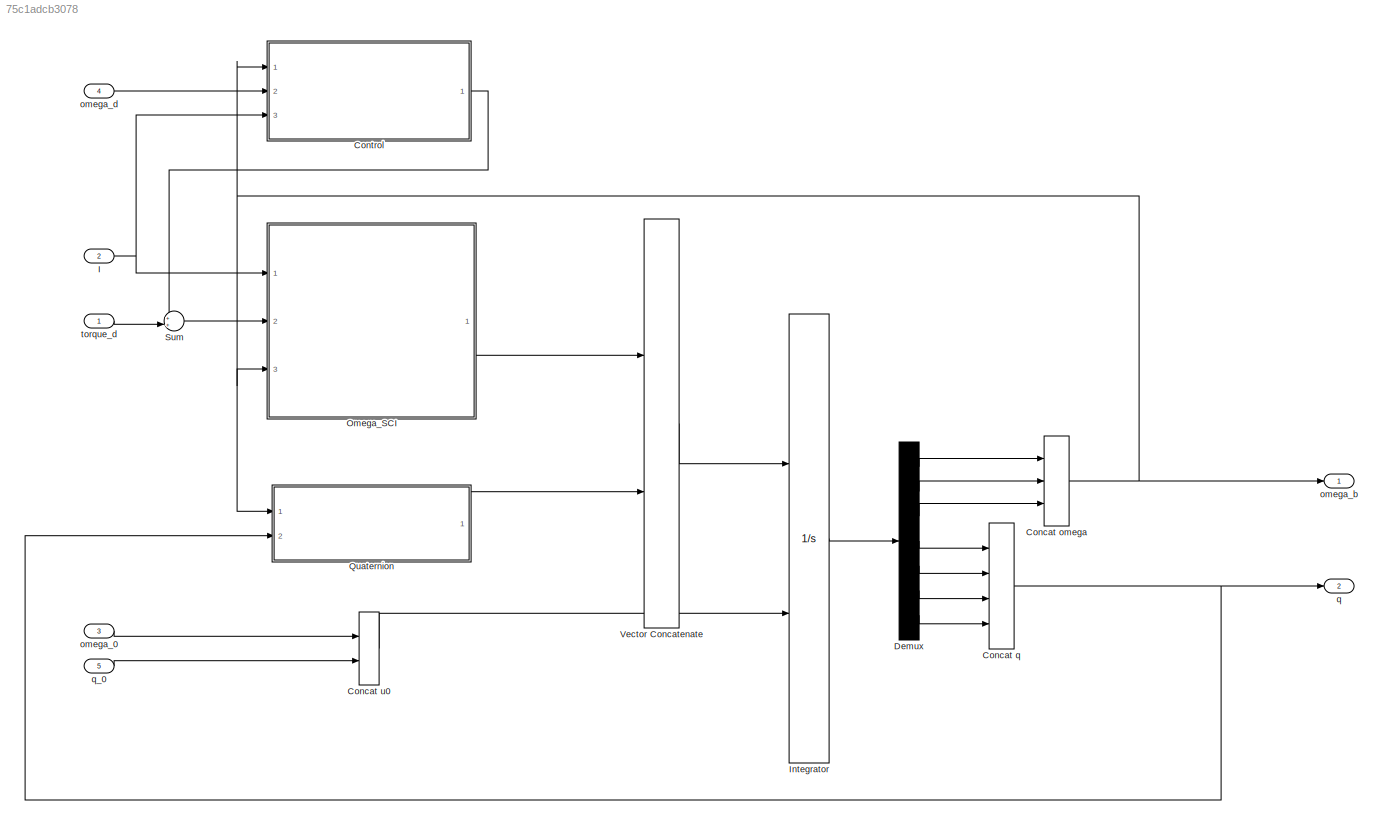
MODEL slx_75c1adcb3078
KIND model
CONFIG AbsTol = auto
CONFIG EnableMultiTasking = off
CONFIG FixedStep = auto
CONFIG MaxStep = auto
CONFIG MinStep = auto
CONFIG RelTol = 1e-3
CONFIG SampleTimeConstraint = Unconstrained
CONFIG Solver = FixedStepAuto
CONFIG SolverName = FixedStepAuto
CONFIG StartTime = 0.0
CONFIG StopTime = 10.0
BLOCK [Concatenate] Concat omega
  NumInputs = 3
  Ports = [3, 1]
BLOCK [Concatenate] Concat q
  NumInputs = 4
  Ports = [4, 1]
BLOCK [Concatenate] Concat u0
  Ports = [2, 1]
BLOCK [SubSystem] Control
  BlockKeywords = __PRM__SERIALIZED__DATA__:SubsystemReferenceBlock
  Ports = [3, 1]
  ReferencedSubsystem = block_control
  RequestExecContextInheritance = off
BLOCK [Demux] Demux
  DisplayOption = bar
  Outputs = 7
  Ports = [1, 7]
BLOCK [Inport] I
  IconDisplay = Port number
  Port = 2
  PortDimensions = [3,3]
  SignalType = real
  Unit = kg*m*m*m*m
BLOCK [Integrator] Integrator
  ContinuousStateAttributes = 'attitude'
  InitialCondition = w0
  InitialConditionSource = external
  Ports = [2, 1]
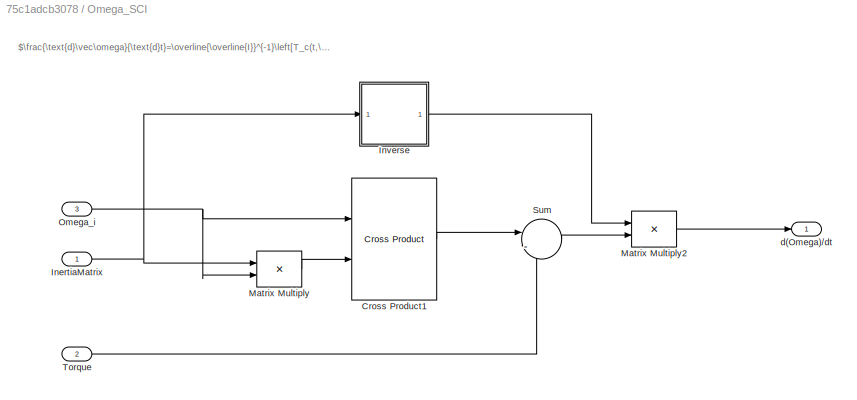
BLOCK [SubSystem] Omega_SCI
  Ports = [3, 1]
  RequestExecContextInheritance = off
BLOCK [Reference] Omega_SCI/Cross Product1  REF=blocklib/Cross Product  (lib defined in mdl_0f6d77dcc548, slx_4f395834c8e9, +4 more)
  Ports = [2, 1]
  SourceBlock = blocklib/Cross Product
  SourceProductName = Custom Library
BLOCK [Inport] Omega_SCI/InertiaMatrix
  IconDisplay = Port number
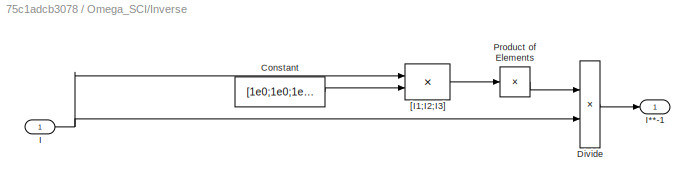
BLOCK [SubSystem] Omega_SCI/Inverse
  Ports = [1, 1]
  RequestExecContextInheritance = off
BLOCK [Constant] Omega_SCI/Inverse/Constant
  Value = [1e0;1e0;1e0]
BLOCK [Product] Omega_SCI/Inverse/Divide
  InputSameDT = off
  Inputs = /*
  OutDataTypeStr = Inherit: Inherit via internal rule
  Ports = [2, 1]
  RndMeth = Floor
  SaturateOnIntegerOverflow = off
BLOCK [Inport] Omega_SCI/Inverse/I
  IconDisplay = Port number
BLOCK [Outport] Omega_SCI/Inverse/I**-1
  IconDisplay = Port number
BLOCK [Product] Omega_SCI/Inverse/Product of Elements
  InputSameDT = off
  Inputs = *
  OutDataTypeStr = Inherit: Inherit via internal rule
  Ports = [1, 1]
  RndMeth = Floor
  SaturateOnIntegerOverflow = off
BLOCK [Product] Omega_SCI/Inverse/[I1;I2;I3]
  InputSameDT = off
  Multiplication = Matrix(*)
  OutDataTypeStr = Inherit: Inherit via internal rule
  Ports = [2, 1]
  RndMeth = Floor
  SaturateOnIntegerOverflow = off
BLOCK [Product] Omega_SCI/Matrix Multiply
  InputSameDT = off
  Multiplication = Matrix(*)
  OutDataTypeStr = Inherit: Inherit via internal rule
  Ports = [2, 1]
  RndMeth = Floor
  SaturateOnIntegerOverflow = off
BLOCK [Product] Omega_SCI/Matrix Multiply2
  InputSameDT = off
  Multiplication = Matrix(*)
  OutDataTypeStr = Inherit: Inherit via internal rule
  Ports = [2, 1]
  RndMeth = Floor
  SaturateOnIntegerOverflow = off
BLOCK [Inport] Omega_SCI/Omega_i
  IconDisplay = Port number
  Port = 3
BLOCK [Sum] Omega_SCI/Sum
  IconShape = round
  InputSameDT = off
  Inputs = |-+
  OutDataTypeStr = Inherit: Inherit via internal rule
  Ports = [2, 1]
  SaturateOnIntegerOverflow = off
BLOCK [Inport] Omega_SCI/Torque
  IconDisplay = Port number
  Port = 2
BLOCK [Outport] Omega_SCI/d(Omega)//dt
  IconDisplay = Port number
  VectorParamsAs1DForOutWhenUnconnected = off
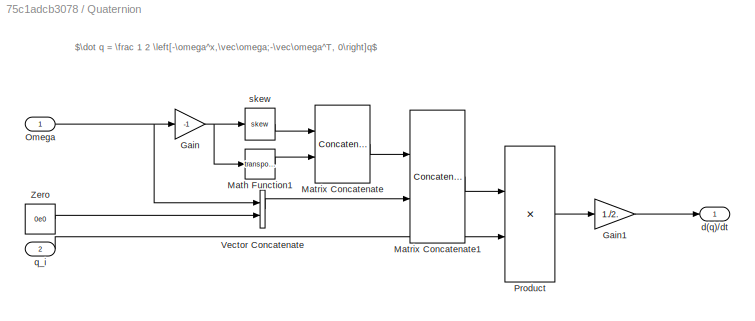
BLOCK [SubSystem] Quaternion
  Ports = [2, 1]
  RequestExecContextInheritance = off
BLOCK [Gain] Quaternion/Gain
  Gain = -1
  OutDataTypeStr = Inherit: Inherit via internal rule
  ParamDataTypeStr = Inherit: Inherit via internal rule
  SaturateOnIntegerOverflow = off
BLOCK [Gain] Quaternion/Gain1
  Gain = 1./2.
  OutDataTypeStr = Inherit: Inherit via internal rule
  ParamDataTypeStr = Inherit: Inherit via internal rule
  SaturateOnIntegerOverflow = off
BLOCK [Math] Quaternion/Math Function1
  Operator = transpose
  Ports = [1, 1]
  SignedPower = off
BLOCK [Concatenate] Quaternion/Matrix Concatenate
  Mode = Multidimensional array
  Ports = [2, 1]
BLOCK [Concatenate] Quaternion/Matrix Concatenate1
  ConcatenateDimension = 2
  Mode = Multidimensional array
  Ports = [2, 1]
BLOCK [Inport] Quaternion/Omega
  IconDisplay = Port number
BLOCK [Product] Quaternion/Product
  InputSameDT = off
  Multiplication = Matrix(*)
  OutDataTypeStr = Inherit: Inherit via internal rule
  Ports = [2, 1]
  RndMeth = Floor
  SaturateOnIntegerOverflow = off
BLOCK [Concatenate] Quaternion/Vector Concatenate
  Ports = [2, 1]
BLOCK [Constant] Quaternion/Zero
  Value = 0e0
BLOCK [Outport] Quaternion/d(q)//dt
  IconDisplay = Port number
  VectorParamsAs1DForOutWhenUnconnected = off
BLOCK [Inport] Quaternion/q_i
  IconDisplay = Port number
  Port = 2
BLOCK [Reference] Quaternion/skew  REF=blocklib/skew  (lib defined in mdl_0f6d77dcc548, slx_4f395834c8e9, +4 more)
  Ports = [1, 1]
  SourceBlock = blocklib/skew
  SourceProductName = Custom Library
BLOCK [Sum] Sum
  IconShape = round
  InputSameDT = off
  Inputs = ++|
  OutDataTypeStr = Inherit: Inherit via internal rule
  Ports = [2, 1]
  SaturateOnIntegerOverflow = off
BLOCK [Concatenate] Vector Concatenate
  Ports = [2, 1]
BLOCK [Inport] omega_0
  IconDisplay = Port number
  Port = 3
  PortDimensions = [3,1]
  SignalType = real
  Unit = rad/sec
BLOCK [Outport] omega_b
  IconDisplay = Port number
  VectorParamsAs1DForOutWhenUnconnected = off
BLOCK [Inport] omega_d
  IconDisplay = Port number
  Port = 4
  PortDimensions = [3,1]
  SignalType = real
  Unit = rad/sec
BLOCK [Outport] q
  IconDisplay = Port number
  Port = 2
  VectorParamsAs1DForOutWhenUnconnected = off
BLOCK [Inport] q_0
  IconDisplay = Port number
  Port = 5
  PortDimensions = [4,1]
  SignalType = real
BLOCK [Inport] torque_d
  IconDisplay = Port number
  PortDimensions = [3,1]
  SignalType = real
  Unit = N*m
ANNOTATION Omega_SCI: $\frac{\text{d}\vec\omega}{\text{d}t}=\overline{\overline{I}}^{-1}\left[T_c(t,\vec\omega)-\vec\omega\times\overline{\overline{I}}\vec\omega\right]$
ANNOTATION Quaternion: $\dot q = \frac 1 2 \left[-\omega^x,\vec\omega;-\vec\omega^T, 0\right]q$
NET Concat omega:1 -> Control:1, Omega_SCI:3, Quaternion:1, omega_b:1
NET Concat q:1 -> Quaternion:2, q:1
LINE Concat u0:1 -> Integrator:2
LINE Control:1 -> Sum:1
LINE Demux:1 -> Concat omega:1
LINE Demux:2 -> Concat omega:2
LINE Demux:3 -> Concat omega:3
LINE Demux:4 -> Concat q:1
LINE Demux:5 -> Concat q:2
LINE Demux:6 -> Concat q:3
LINE Demux:7 -> Concat q:4
NET I:1 -> Control:3, Omega_SCI:1
LINE Integrator:1 -> Demux:1
LINE Omega_SCI/Cross Product1:1 -> Omega_SCI/Sum:1
NET Omega_SCI/InertiaMatrix:1 -> Omega_SCI/Inverse:1, Omega_SCI/Matrix Multiply:1
LINE Omega_SCI/Inverse/Constant:1 -> Omega_SCI/Inverse/[I1;I2;I3]:2
LINE Omega_SCI/Inverse/Divide:1 -> Omega_SCI/Inverse/I**-1:1
NET Omega_SCI/Inverse/I:1 -> Omega_SCI/Inverse/Divide:2, Omega_SCI/Inverse/[I1;I2;I3]:1
LINE Omega_SCI/Inverse/Product of Elements:1 -> Omega_SCI/Inverse/Divide:1
LINE Omega_SCI/Inverse/[I1;I2;I3]:1 -> Omega_SCI/Inverse/Product of Elements:1
LINE Omega_SCI/Inverse:1 -> Omega_SCI/Matrix Multiply2:1
LINE Omega_SCI/Matrix Multiply2:1 -> Omega_SCI/d(Omega)//dt:1
LINE Omega_SCI/Matrix Multiply:1 -> Omega_SCI/Cross Product1:2
NET Omega_SCI/Omega_i:1 -> Omega_SCI/Cross Product1:1, Omega_SCI/Matrix Multiply:2
LINE Omega_SCI/Sum:1 -> Omega_SCI/Matrix Multiply2:2
LINE Omega_SCI/Torque:1 -> Omega_SCI/Sum:2
LINE Omega_SCI:1 -> Vector Concatenate:1
LINE Quaternion/Gain1:1 -> Quaternion/d(q)//dt:1
NET Quaternion/Gain:1 -> Quaternion/Math Function1:1, Quaternion/skew:1
LINE Quaternion/Math Function1:1 -> Quaternion/Matrix Concatenate:2
LINE Quaternion/Matrix Concatenate1:1 -> Quaternion/Product:1
LINE Quaternion/Matrix Concatenate:1 -> Quaternion/Matrix Concatenate1:1
NET Quaternion/Omega:1 -> Quaternion/Gain:1, Quaternion/Vector Concatenate:1
LINE Quaternion/Product:1 -> Quaternion/Gain1:1
LINE Quaternion/Vector Concatenate:1 -> Quaternion/Matrix Concatenate1:2
LINE Quaternion/Zero:1 -> Quaternion/Vector Concatenate:2
LINE Quaternion/q_i:1 -> Quaternion/Product:2
LINE Quaternion/skew:1 -> Quaternion/Matrix Concatenate:1
LINE Quaternion:1 -> Vector Concatenate:2
LINE Sum:1 -> Omega_SCI:2
LINE Vector Concatenate:1 -> Integrator:1
LINE omega_0:1 -> Concat u0:1
LINE omega_d:1 -> Control:2
LINE q_0:1 -> Concat u0:2
LINE torque_d:1 -> Sum:2
note: NET lines group one-source signal fan-out (src -> all destinations, sorted); 1:1 wires keep LINE
